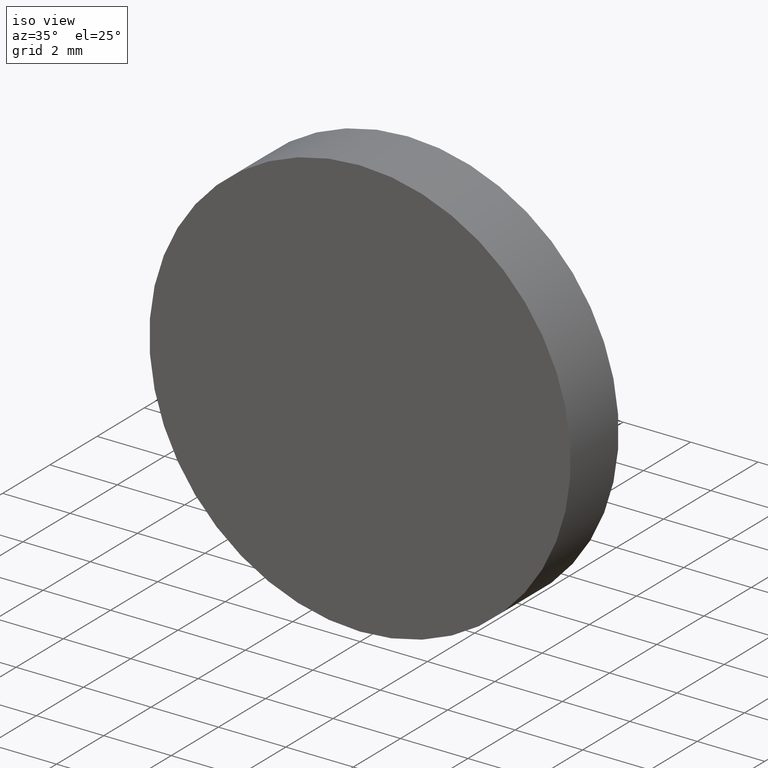
[diagram: clean part render]
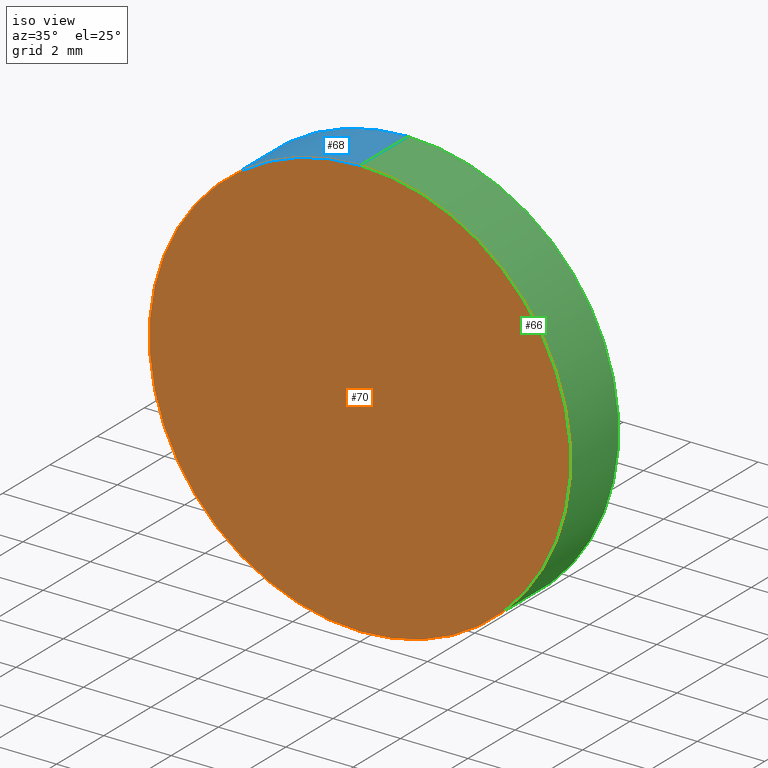
[diagram: same view with three faces highlighted in distinct colors, each labeled with its STEP entity id]
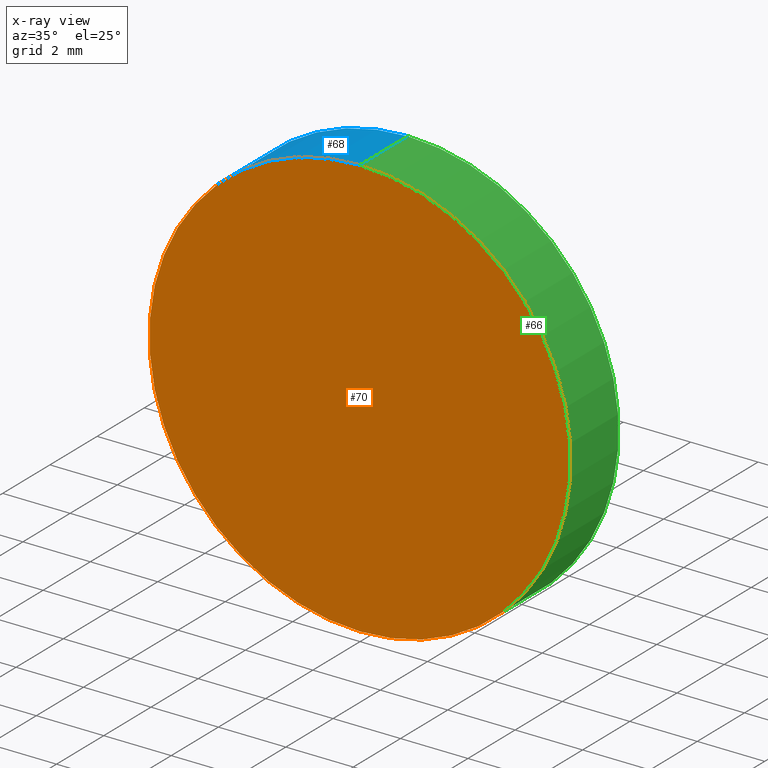
[diagram: x-ray of the same camera — body ghosted, the three highlighted faces saturated]
A machine part, iso view with three faces highlighted in distinct colors.
The next image is the same camera in x-ray (body ghosted, the three faces saturated) — at least one of them is partly hidden behind the body in this view.
Their STEP definitions:

[orange] entity #70 — the highlighted planar face has unit normal (0, 1, 0).
#4 = CIRCLE ( 'NONE', #98, 6.250000000000000000 ) ;
#13 = EDGE_LOOP ( 'NONE', ( #126, #139 ) ) ;
#16 = DIRECTION ( 'NONE',  ( 0.0000000000000000000, 0.0000000000000000000, 1.000000000000000000 ) ) ;
#33 = CIRCLE ( 'NONE', #77, 6.250000000000000000 ) ;
#48 = CARTESIAN_POINT ( 'NONE',  ( 0.0000000000000000000, 0.0000000000000000000, 0.0000000000000000000 ) ) ;
#60 = EDGE_CURVE ( 'NONE', #78, #105, #33, .T. ) ;
#61 = DIRECTION ( 'NONE',  ( 0.0000000000000000000, -0.0000000000000000000, 1.000000000000000000 ) ) ;
#62 = CARTESIAN_POINT ( 'NONE',  ( 0.0000000000000000000, 0.0000000000000000000, -6.250000000000000000 ) ) ;
#70 = ADVANCED_FACE ( 'NONE', ( #138 ), #136, .F. ) ;
#71 = EDGE_CURVE ( 'NONE', #105, #78, #4, .T. ) ;
#77 = AXIS2_PLACEMENT_3D ( 'NONE', #93, #91, #90 ) ;
#78 = VERTEX_POINT ( 'NONE', #108 ) ;
#90 = DIRECTION ( 'NONE',  ( 0.0000000000000000000, 0.0000000000000000000, 1.000000000000000000 ) ) ;
#91 = DIRECTION ( 'NONE',  ( 0.0000000000000000000, 1.000000000000000000, 0.0000000000000000000 ) ) ;
#93 = CARTESIAN_POINT ( 'NONE',  ( 0.0000000000000000000, 0.0000000000000000000, 0.0000000000000000000 ) ) ;
#98 = AXIS2_PLACEMENT_3D ( 'NONE', #117, #115, #16 ) ;
#105 = VERTEX_POINT ( 'NONE', #62 ) ;
#108 = CARTESIAN_POINT ( 'NONE',  ( 7.654042494670957600E-016, 0.0000000000000000000, 6.250000000000000000 ) ) ;
#111 = AXIS2_PLACEMENT_3D ( 'NONE', #48, #119, #61 ) ;
#115 = DIRECTION ( 'NONE',  ( 0.0000000000000000000, 1.000000000000000000, 0.0000000000000000000 ) ) ;
#117 = CARTESIAN_POINT ( 'NONE',  ( 0.0000000000000000000, 0.0000000000000000000, 0.0000000000000000000 ) ) ;
#119 = DIRECTION ( 'NONE',  ( 0.0000000000000000000, 1.000000000000000000, 0.0000000000000000000 ) ) ;
#126 = ORIENTED_EDGE ( 'NONE', *, *, #71, .F. ) ;
#136 = PLANE ( 'NONE',  #111 ) ;
#138 = FACE_OUTER_BOUND ( 'NONE', #13, .T. ) ;
#139 = ORIENTED_EDGE ( 'NONE', *, *, #60, .F. ) ;

[blue] entity #68 — the highlighted cylindrical surface (partial cylindrical patch) has radius 6.25 mm, axis along (-0, -1, -0).
#2 = DIRECTION ( 'NONE',  ( 0.0000000000000000000, 0.0000000000000000000, 1.000000000000000000 ) ) ;
#3 = ORIENTED_EDGE ( 'NONE', *, *, #80, .F. ) ;
#4 = CIRCLE ( 'NONE', #98, 6.250000000000000000 ) ;
#5 = DIRECTION ( 'NONE',  ( 0.0000000000000000000, 1.000000000000000000, 0.0000000000000000000 ) ) ;
#6 = CARTESIAN_POINT ( 'NONE',  ( 7.654042494670957600E-016, 2.029999999999999800, 6.250000000000000000 ) ) ;
#8 = CARTESIAN_POINT ( 'NONE',  ( 0.0000000000000000000, 2.029999999999999800, 0.0000000000000000000 ) ) ;
#10 = ORIENTED_EDGE ( 'NONE', *, *, #71, .T. ) ;
#14 = ORIENTED_EDGE ( 'NONE', *, *, #57, .F. ) ;
#16 = DIRECTION ( 'NONE',  ( 0.0000000000000000000, 0.0000000000000000000, 1.000000000000000000 ) ) ;
#18 = DIRECTION ( 'NONE',  ( 0.0000000000000000000, 0.0000000000000000000, -1.000000000000000000 ) ) ;
#20 = CARTESIAN_POINT ( 'NONE',  ( 0.0000000000000000000, 2.029999999999999800, -6.250000000000000000 ) ) ;
#22 = VECTOR ( 'NONE', #106, 1000.000000000000000 ) ;
#24 = CYLINDRICAL_SURFACE ( 'NONE', #107, 6.250000000000000000 ) ;
#37 = EDGE_LOOP ( 'NONE', ( #14, #3, #94, #10 ) ) ;
#39 = LINE ( 'NONE', #20, #22 ) ;
#44 = VERTEX_POINT ( 'NONE', #73 ) ;
#46 = CARTESIAN_POINT ( 'NONE',  ( 0.0000000000000000000, 2.029999999999999800, 0.0000000000000000000 ) ) ;
#47 = EDGE_CURVE ( 'NONE', #44, #105, #39, .T. ) ;
#51 = FACE_OUTER_BOUND ( 'NONE', #37, .T. ) ;
#54 = VERTEX_POINT ( 'NONE', #132 ) ;
#57 = EDGE_CURVE ( 'NONE', #54, #78, #109, .T. ) ;
#62 = CARTESIAN_POINT ( 'NONE',  ( 0.0000000000000000000, 0.0000000000000000000, -6.250000000000000000 ) ) ;
#68 = ADVANCED_FACE ( 'NONE', ( #51 ), #24, .T. ) ;
#71 = EDGE_CURVE ( 'NONE', #105, #78, #4, .T. ) ;
#73 = CARTESIAN_POINT ( 'NONE',  ( 0.0000000000000000000, 2.029999999999999800, -6.250000000000000000 ) ) ;
#78 = VERTEX_POINT ( 'NONE', #108 ) ;
#80 = EDGE_CURVE ( 'NONE', #44, #54, #86, .T. ) ;
#86 = CIRCLE ( 'NONE', #120, 6.250000000000000000 ) ;
#94 = ORIENTED_EDGE ( 'NONE', *, *, #47, .T. ) ;
#98 = AXIS2_PLACEMENT_3D ( 'NONE', #117, #115, #16 ) ;
#99 = DIRECTION ( 'NONE',  ( -0.0000000000000000000, -1.000000000000000000, -0.0000000000000000000 ) ) ;
#105 = VERTEX_POINT ( 'NONE', #62 ) ;
#106 = DIRECTION ( 'NONE',  ( -0.0000000000000000000, -1.000000000000000000, -0.0000000000000000000 ) ) ;
#107 = AXIS2_PLACEMENT_3D ( 'NONE', #46, #99, #18 ) ;
#108 = CARTESIAN_POINT ( 'NONE',  ( 7.654042494670957600E-016, 0.0000000000000000000, 6.250000000000000000 ) ) ;
#109 = LINE ( 'NONE', #6, #140 ) ;
#113 = DIRECTION ( 'NONE',  ( -0.0000000000000000000, -1.000000000000000000, -0.0000000000000000000 ) ) ;
#115 = DIRECTION ( 'NONE',  ( 0.0000000000000000000, 1.000000000000000000, 0.0000000000000000000 ) ) ;
#117 = CARTESIAN_POINT ( 'NONE',  ( 0.0000000000000000000, 0.0000000000000000000, 0.0000000000000000000 ) ) ;
#120 = AXIS2_PLACEMENT_3D ( 'NONE', #8, #5, #2 ) ;
#132 = CARTESIAN_POINT ( 'NONE',  ( 7.654042494670957600E-016, 2.029999999999999800, 6.250000000000000000 ) ) ;
#140 = VECTOR ( 'NONE', #113, 1000.000000000000000 ) ;

[green] entity #66 — the highlighted cylindrical surface (partial cylindrical patch) has radius 6.25 mm, axis along (-0, -1, -0).
#6 = CARTESIAN_POINT ( 'NONE',  ( 7.654042494670957600E-016, 2.029999999999999800, 6.250000000000000000 ) ) ;
#20 = CARTESIAN_POINT ( 'NONE',  ( 0.0000000000000000000, 2.029999999999999800, -6.250000000000000000 ) ) ;
#21 = CARTESIAN_POINT ( 'NONE',  ( 0.0000000000000000000, 2.029999999999999800, 0.0000000000000000000 ) ) ;
#22 = VECTOR ( 'NONE', #106, 1000.000000000000000 ) ;
#30 = DIRECTION ( 'NONE',  ( 0.0000000000000000000, 0.0000000000000000000, -1.000000000000000000 ) ) ;
#33 = CIRCLE ( 'NONE', #77, 6.250000000000000000 ) ;
#35 = ORIENTED_EDGE ( 'NONE', *, *, #57, .T. ) ;
#39 = LINE ( 'NONE', #20, #22 ) ;
#41 = DIRECTION ( 'NONE',  ( 0.0000000000000000000, 0.0000000000000000000, 1.000000000000000000 ) ) ;
#44 = VERTEX_POINT ( 'NONE', #73 ) ;
#45 = FACE_OUTER_BOUND ( 'NONE', #102, .T. ) ;
#47 = EDGE_CURVE ( 'NONE', #44, #105, #39, .T. ) ;
#53 = EDGE_CURVE ( 'NONE', #54, #44, #128, .T. ) ;
#54 = VERTEX_POINT ( 'NONE', #132 ) ;
#57 = EDGE_CURVE ( 'NONE', #54, #78, #109, .T. ) ;
#60 = EDGE_CURVE ( 'NONE', #78, #105, #33, .T. ) ;
#62 = CARTESIAN_POINT ( 'NONE',  ( 0.0000000000000000000, 0.0000000000000000000, -6.250000000000000000 ) ) ;
#65 = AXIS2_PLACEMENT_3D ( 'NONE', #137, #116, #41 ) ;
#66 = ADVANCED_FACE ( 'NONE', ( #45 ), #122, .T. ) ;
#72 = ORIENTED_EDGE ( 'NONE', *, *, #53, .F. ) ;
#73 = CARTESIAN_POINT ( 'NONE',  ( 0.0000000000000000000, 2.029999999999999800, -6.250000000000000000 ) ) ;
#77 = AXIS2_PLACEMENT_3D ( 'NONE', #93, #91, #90 ) ;
#78 = VERTEX_POINT ( 'NONE', #108 ) ;
#89 = ORIENTED_EDGE ( 'NONE', *, *, #47, .F. ) ;
#90 = DIRECTION ( 'NONE',  ( 0.0000000000000000000, 0.0000000000000000000, 1.000000000000000000 ) ) ;
#91 = DIRECTION ( 'NONE',  ( 0.0000000000000000000, 1.000000000000000000, 0.0000000000000000000 ) ) ;
#93 = CARTESIAN_POINT ( 'NONE',  ( 0.0000000000000000000, 0.0000000000000000000, 0.0000000000000000000 ) ) ;
#96 = DIRECTION ( 'NONE',  ( -0.0000000000000000000, -1.000000000000000000, -0.0000000000000000000 ) ) ;
#102 = EDGE_LOOP ( 'NONE', ( #72, #35, #123, #89 ) ) ;
#104 = AXIS2_PLACEMENT_3D ( 'NONE', #21, #96, #30 ) ;
#105 = VERTEX_POINT ( 'NONE', #62 ) ;
#106 = DIRECTION ( 'NONE',  ( -0.0000000000000000000, -1.000000000000000000, -0.0000000000000000000 ) ) ;
#108 = CARTESIAN_POINT ( 'NONE',  ( 7.654042494670957600E-016, 0.0000000000000000000, 6.250000000000000000 ) ) ;
#109 = LINE ( 'NONE', #6, #140 ) ;
#113 = DIRECTION ( 'NONE',  ( -0.0000000000000000000, -1.000000000000000000, -0.0000000000000000000 ) ) ;
#116 = DIRECTION ( 'NONE',  ( 0.0000000000000000000, 1.000000000000000000, 0.0000000000000000000 ) ) ;
#122 = CYLINDRICAL_SURFACE ( 'NONE', #104, 6.250000000000000000 ) ;
#123 = ORIENTED_EDGE ( 'NONE', *, *, #60, .T. ) ;
#128 = CIRCLE ( 'NONE', #65, 6.250000000000000000 ) ;
#132 = CARTESIAN_POINT ( 'NONE',  ( 7.654042494670957600E-016, 2.029999999999999800, 6.250000000000000000 ) ) ;
#137 = CARTESIAN_POINT ( 'NONE',  ( 0.0000000000000000000, 2.029999999999999800, 0.0000000000000000000 ) ) ;
#140 = VECTOR ( 'NONE', #113, 1000.000000000000000 ) ;